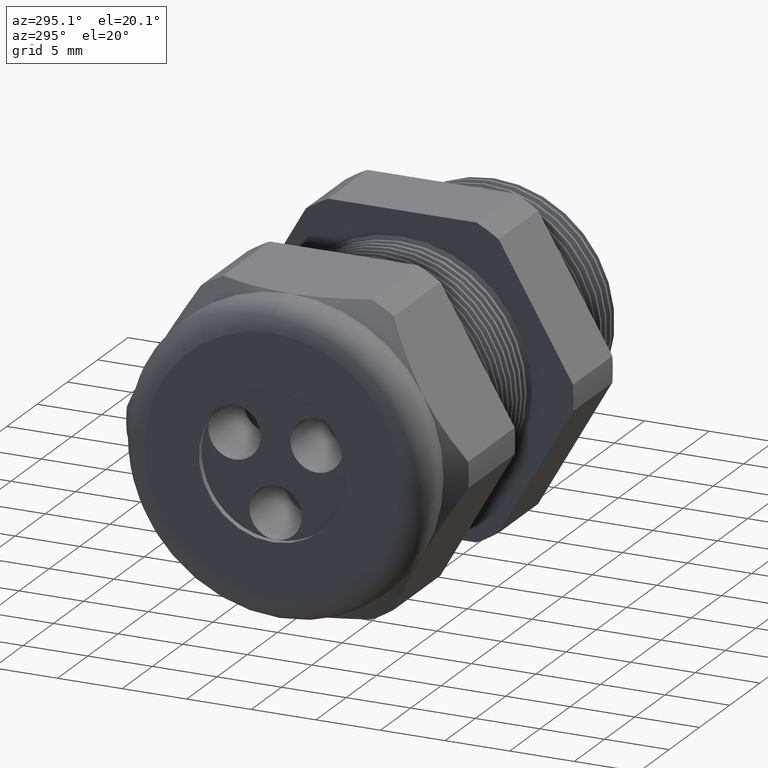
[diagram: clean part render]
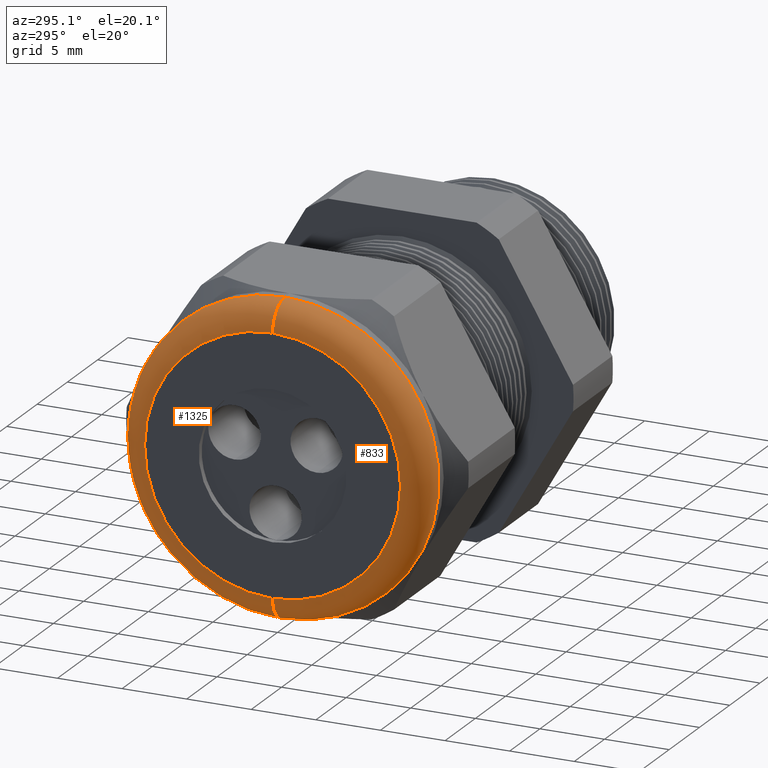
[diagram: same view with one multi-face feature highlighted, each face labeled with its STEP entity id]
A machine part, auxiliary view. The highlighted faces form ONE feature: a constant-radius fillet chain: 2 tangent blend faces with common blend radius 2.032 mm. The faces share edges in the B-rep.
Their STEP definitions:
[1] entity #833 (Torus):
#625 = EDGE_CURVE ( 'NONE', #1329, #1328, #3003, .T. ) ;
#693 = EDGE_CURVE ( 'NONE', #1332, #1335, #3186, .T. ) ;
#833 = ADVANCED_FACE ( 'NONE', ( #3375 ), #3374, .T. ) ;
#834 = EDGE_LOOP ( 'NONE', ( #835, #836, #837, #838 ) ) ;
#835 = ORIENTED_EDGE ( 'NONE', *, *, #1331, .F. ) ;
#836 = ORIENTED_EDGE ( 'NONE', *, *, #625, .F. ) ;
#837 = ORIENTED_EDGE ( 'NONE', *, *, #1337, .T. ) ;
#838 = ORIENTED_EDGE ( 'NONE', *, *, #693, .F. ) ;
#1328 = VERTEX_POINT ( 'NONE', #4106 ) ;
#1329 = VERTEX_POINT ( 'NONE', #4105 ) ;
#1331 = EDGE_CURVE ( 'NONE', #1328, #1332, #4104, .T. ) ;
#1332 = VERTEX_POINT ( 'NONE', #4099 ) ;
#1335 = VERTEX_POINT ( 'NONE', #4093 ) ;
#1337 = EDGE_CURVE ( 'NONE', #1329, #1335, #4092, .T. ) ;
#3003 = CIRCLE ( 'NONE', #3063, 0.4699999999999999200 ) ;
#3008 = CARTESIAN_POINT ( 'NONE',  ( -1.330000000000000100, 0.0000000000000000000, 0.0000000000000000000 ) ) ;
#3061 = DIRECTION ( 'NONE',  ( 0.0000000000000000000, 0.0000000000000000000, 1.000000000000000000 ) ) ;
#3062 = DIRECTION ( 'NONE',  ( 1.000000000000000000, 0.0000000000000000000, 0.0000000000000000000 ) ) ;
#3063 = AXIS2_PLACEMENT_3D ( 'NONE', #3008, #3062, #3061 ) ;
#3182 = DIRECTION ( 'NONE',  ( 0.0000000000000000000, 0.0000000000000000000, 1.000000000000000000 ) ) ;
#3183 = DIRECTION ( 'NONE',  ( -1.000000000000000000, 0.0000000000000000000, 0.0000000000000000000 ) ) ;
#3184 = CARTESIAN_POINT ( 'NONE',  ( -1.409999999999999900, 0.0000000000000000000, 0.0000000000000000000 ) ) ;
#3185 = AXIS2_PLACEMENT_3D ( 'NONE', #3184, #3183, #3182 ) ;
#3186 = CIRCLE ( 'NONE', #3185, 0.3899999999999999600 ) ;
#3371 = DIRECTION ( 'NONE',  ( 0.0000000000000000000, 0.0000000000000000000, 1.000000000000000000 ) ) ;
#3372 = DIRECTION ( 'NONE',  ( -1.000000000000000000, 0.0000000000000000000, 0.0000000000000000000 ) ) ;
#3373 = AXIS2_PLACEMENT_3D ( 'NONE', #3380, #3372, #3371 ) ;
#3374 = TOROIDAL_SURFACE ( 'NONE', #3373, 0.3899999999999999600, 0.08000000000000000200 ) ;
#3375 = FACE_OUTER_BOUND ( 'NONE', #834, .T. ) ;
#3380 = CARTESIAN_POINT ( 'NONE',  ( -1.330000000000000100, 0.0000000000000000000, 0.0000000000000000000 ) ) ;
#4092 = CIRCLE ( 'NONE', #4154, 0.07999999999999996000 ) ;
#4093 = CARTESIAN_POINT ( 'NONE',  ( -1.409999999999999900, 0.0000000000000000000, 0.3899999999999999600 ) ) ;
#4099 = CARTESIAN_POINT ( 'NONE',  ( -1.409999999999999900, 5.265981236333617600E-017, -0.3899999999999999600 ) ) ;
#4100 = DIRECTION ( 'NONE',  ( 0.0000000000000000000, -1.224646799147353900E-016, 1.000000000000000000 ) ) ;
#4101 = DIRECTION ( 'NONE',  ( 0.0000000000000000000, 1.000000000000000000, 1.224646799147353200E-016 ) ) ;
#4102 = CARTESIAN_POINT ( 'NONE',  ( -1.330000000000000100, 4.776122516674676800E-017, -0.3899999999999999600 ) ) ;
#4103 = AXIS2_PLACEMENT_3D ( 'NONE', #4102, #4101, #4100 ) ;
#4104 = CIRCLE ( 'NONE', #4103, 0.07999999999999996000 ) ;
#4105 = CARTESIAN_POINT ( 'NONE',  ( -1.330000000000000100, 5.755839955992558400E-017, 0.4699999999999999200 ) ) ;
#4106 = CARTESIAN_POINT ( 'NONE',  ( -1.330000000000000100, 0.0000000000000000000, -0.4699999999999999200 ) ) ;
#4151 = DIRECTION ( 'NONE',  ( 0.0000000000000000000, 0.0000000000000000000, -1.000000000000000000 ) ) ;
#4152 = DIRECTION ( 'NONE',  ( 0.0000000000000000000, -1.000000000000000000, 0.0000000000000000000 ) ) ;
#4153 = CARTESIAN_POINT ( 'NONE',  ( -1.330000000000000100, 0.0000000000000000000, 0.3899999999999999600 ) ) ;
#4154 = AXIS2_PLACEMENT_3D ( 'NONE', #4153, #4152, #4151 ) ;
[2] entity #1325 (Torus):
#1325 = ADVANCED_FACE ( 'NONE', ( #4117 ), #4114, .T. ) ;
#1326 = ORIENTED_EDGE ( 'NONE', *, *, #1327, .F. ) ;
#1327 = EDGE_CURVE ( 'NONE', #1328, #1329, #4110, .T. ) ;
#1328 = VERTEX_POINT ( 'NONE', #4106 ) ;
#1329 = VERTEX_POINT ( 'NONE', #4105 ) ;
#1330 = ORIENTED_EDGE ( 'NONE', *, *, #1331, .T. ) ;
#1331 = EDGE_CURVE ( 'NONE', #1328, #1332, #4104, .T. ) ;
#1332 = VERTEX_POINT ( 'NONE', #4099 ) ;
#1333 = ORIENTED_EDGE ( 'NONE', *, *, #1334, .F. ) ;
#1334 = EDGE_CURVE ( 'NONE', #1335, #1332, #4098, .T. ) ;
#1335 = VERTEX_POINT ( 'NONE', #4093 ) ;
#1336 = ORIENTED_EDGE ( 'NONE', *, *, #1337, .F. ) ;
#1337 = EDGE_CURVE ( 'NONE', #1329, #1335, #4092, .T. ) ;
#1354 = EDGE_LOOP ( 'NONE', ( #1326, #1330, #1333, #1336 ) ) ;
#4092 = CIRCLE ( 'NONE', #4154, 0.07999999999999996000 ) ;
#4093 = CARTESIAN_POINT ( 'NONE',  ( -1.409999999999999900, 0.0000000000000000000, 0.3899999999999999600 ) ) ;
#4094 = DIRECTION ( 'NONE',  ( 0.0000000000000000000, 0.0000000000000000000, 1.000000000000000000 ) ) ;
#4095 = DIRECTION ( 'NONE',  ( -1.000000000000000000, 0.0000000000000000000, 0.0000000000000000000 ) ) ;
#4096 = CARTESIAN_POINT ( 'NONE',  ( -1.409999999999999900, 0.0000000000000000000, 0.0000000000000000000 ) ) ;
#4097 = AXIS2_PLACEMENT_3D ( 'NONE', #4096, #4095, #4094 ) ;
#4098 = CIRCLE ( 'NONE', #4097, 0.3899999999999999600 ) ;
#4099 = CARTESIAN_POINT ( 'NONE',  ( -1.409999999999999900, 5.265981236333617600E-017, -0.3899999999999999600 ) ) ;
#4100 = DIRECTION ( 'NONE',  ( 0.0000000000000000000, -1.224646799147353900E-016, 1.000000000000000000 ) ) ;
#4101 = DIRECTION ( 'NONE',  ( 0.0000000000000000000, 1.000000000000000000, 1.224646799147353200E-016 ) ) ;
#4102 = CARTESIAN_POINT ( 'NONE',  ( -1.330000000000000100, 4.776122516674676800E-017, -0.3899999999999999600 ) ) ;
#4103 = AXIS2_PLACEMENT_3D ( 'NONE', #4102, #4101, #4100 ) ;
#4104 = CIRCLE ( 'NONE', #4103, 0.07999999999999996000 ) ;
#4105 = CARTESIAN_POINT ( 'NONE',  ( -1.330000000000000100, 5.755839955992558400E-017, 0.4699999999999999200 ) ) ;
#4106 = CARTESIAN_POINT ( 'NONE',  ( -1.330000000000000100, 0.0000000000000000000, -0.4699999999999999200 ) ) ;
#4107 = DIRECTION ( 'NONE',  ( 0.0000000000000000000, 0.0000000000000000000, 1.000000000000000000 ) ) ;
#4108 = DIRECTION ( 'NONE',  ( 1.000000000000000000, 0.0000000000000000000, 0.0000000000000000000 ) ) ;
#4109 = AXIS2_PLACEMENT_3D ( 'NONE', #4115, #4108, #4107 ) ;
#4110 = CIRCLE ( 'NONE', #4109, 0.4699999999999999200 ) ;
#4111 = DIRECTION ( 'NONE',  ( 0.0000000000000000000, 0.0000000000000000000, 1.000000000000000000 ) ) ;
#4112 = DIRECTION ( 'NONE',  ( -1.000000000000000000, 0.0000000000000000000, 0.0000000000000000000 ) ) ;
#4113 = AXIS2_PLACEMENT_3D ( 'NONE', #4116, #4112, #4111 ) ;
#4114 = TOROIDAL_SURFACE ( 'NONE', #4113, 0.3899999999999999600, 0.08000000000000000200 ) ;
#4115 = CARTESIAN_POINT ( 'NONE',  ( -1.330000000000000100, 0.0000000000000000000, 0.0000000000000000000 ) ) ;
#4116 = CARTESIAN_POINT ( 'NONE',  ( -1.330000000000000100, 0.0000000000000000000, 0.0000000000000000000 ) ) ;
#4117 = FACE_OUTER_BOUND ( 'NONE', #1354, .T. ) ;
#4151 = DIRECTION ( 'NONE',  ( 0.0000000000000000000, 0.0000000000000000000, -1.000000000000000000 ) ) ;
#4152 = DIRECTION ( 'NONE',  ( 0.0000000000000000000, -1.000000000000000000, 0.0000000000000000000 ) ) ;
#4153 = CARTESIAN_POINT ( 'NONE',  ( -1.330000000000000100, 0.0000000000000000000, 0.3899999999999999600 ) ) ;
#4154 = AXIS2_PLACEMENT_3D ( 'NONE', #4153, #4152, #4151 ) ;